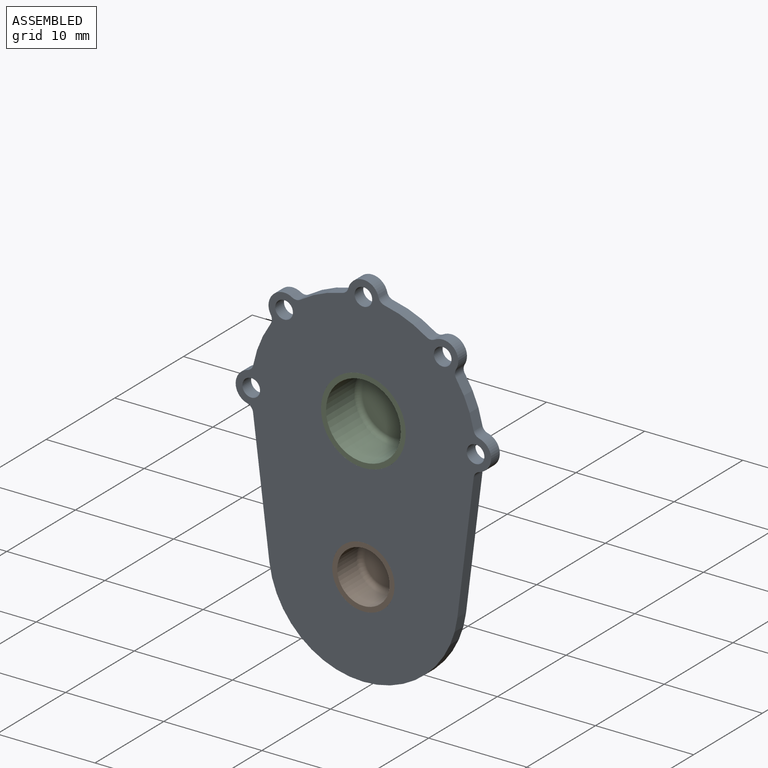
[diagram: assembled view]
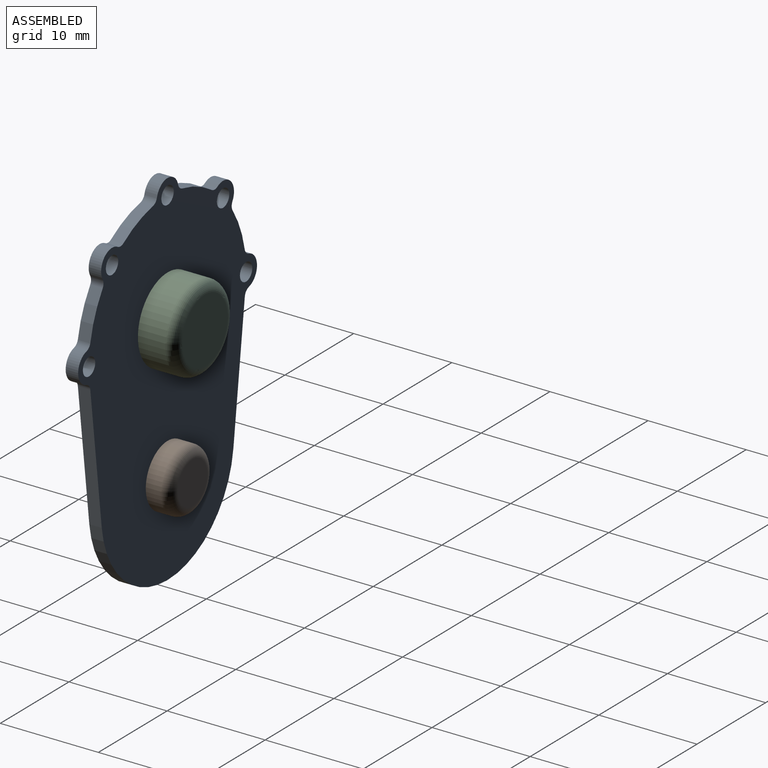
[diagram: assembled view, second angle]
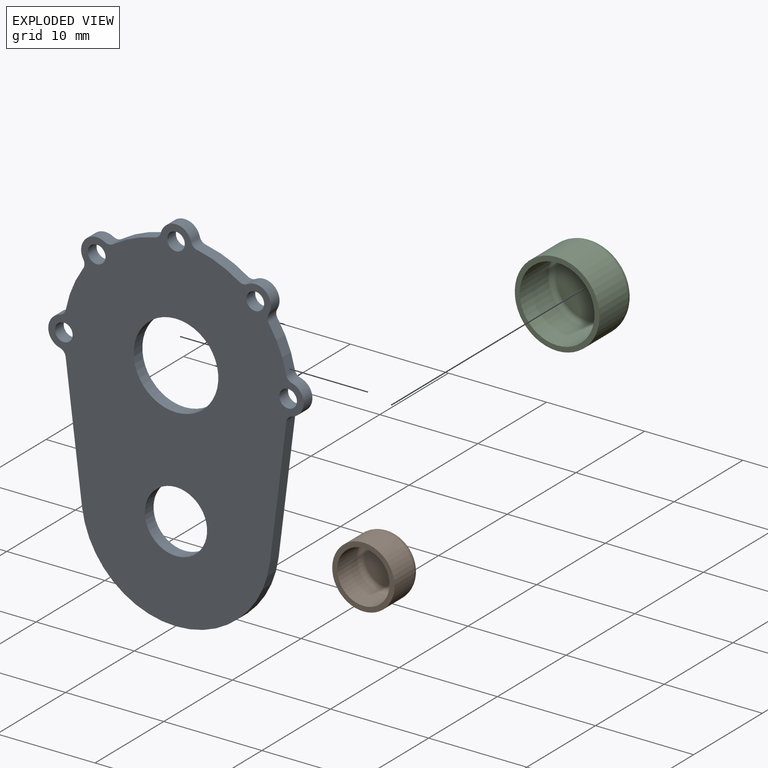
[diagram: exploded view]
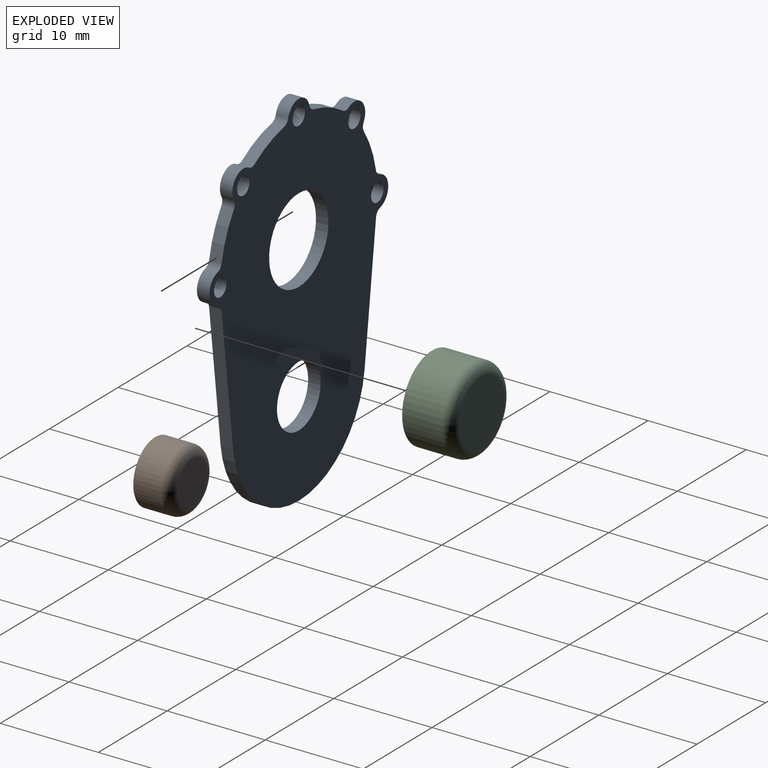
[diagram: exploded view, second angle]
ASSEMBLY  parts=3 mates=2
PART A: 31 faces, bbox 26x1.3x37 mm
  f0: plane 13.36x1.67mm, normal (-0.99,0,-0.12), area 17.1mm2, adj f1,f23,f24,f25
  f1: cylinder r=0.79mm len=1.27mm, axis (0,-1,0), area 1.2mm2, adj f0,f2,f24,f25
  f2: cylinder r=1.59mm len=3.08mm, axis (0,-1,0), area 5.3mm2, adj f1,f3,f24,f25
  f3: cylinder r=0.79mm len=1.27mm, axis (0,-1,0), area 1.1mm2, adj f2,f4,f24,f25
  f4: cylinder r=11.43mm len=4.25mm, axis (0,-1,0), area 5.9mm2, adj f3,f5,f24,f25
  f5: cylinder r=0.79mm len=1.27mm, axis (0,-1,0), area 1.1mm2, adj f4,f6,f24,f25
  f6: cylinder r=1.59mm len=2.41mm, axis (0,-1,0), area 5.4mm2, adj f5,f7,f24,f25
  f7: cylinder r=0.79mm len=1.27mm, axis (0,-1,0), area 1.1mm2, adj f6,f8,f24,f25
  f8: cylinder r=11.43mm len=4.25mm, axis (0,-1,0), area 5.9mm2, adj f7,f9,f24,f25
  f9: cylinder r=0.79mm len=1.27mm, axis (0,-1,0), area 1.1mm2, adj f8,f10,f24,f25
  f10: cylinder r=1.59mm len=3.08mm, axis (0,-1,0), area 5.4mm2, adj f9,f11,f24,f25
  f11: cylinder r=0.79mm len=1.27mm, axis (0,-1,0), area 1.1mm2, adj f10,f12,f24,f25
  f12: cylinder r=11.43mm len=4.25mm, axis (0,-1,0), area 5.9mm2, adj f11,f13,f24,f25
  f13: cylinder r=0.79mm len=1.27mm, axis (0,-1,0), area 1.1mm2, adj f12,f14,f24,f25
  f14: cylinder r=1.59mm len=2.41mm, axis (0,-1,0), area 5.4mm2, adj f13,f15,f24,f25
  f15: cylinder r=0.79mm len=1.27mm, axis (0,-1,0), area 1.1mm2, adj f14,f16,f24,f25
  f16: cylinder r=11.43mm len=4.25mm, axis (0,-1,0), area 5.9mm2, adj f15,f17,f24,f25
  f17: cylinder r=0.79mm len=1.27mm, axis (0,-1,0), area 1.1mm2, adj f16,f18,f24,f25
  f18: cylinder r=1.59mm len=3.08mm, axis (0,-1,0), area 5.3mm2, adj f17,f19,f24,f25
  f19: cylinder r=0.79mm len=1.27mm, axis (0,-1,0), area 1.2mm2, adj f18,f20,f24,f25
  f20: plane 13.36x1.67mm, normal (0.99,0,-0.12), area 17.1mm2, adj f19,f23,f24,f25
  f21: cylinder r=3.17mm len=6.35mm, axis (0,-1,0), area 25.3mm2, adj f24,f25
  f22: cylinder r=4.32mm len=8.64mm, axis (0,-1,0), area 34.5mm2, adj f24,f25
  f23: cylinder r=9.65mm len=19.16mm, axis (0,-1,0), area 35.5mm2, adj f0,f20,f24,f25
  f24: plane 37.04x26.04mm, normal (0,1,0), area 574.8mm2, adj f0,f1,f2,f3,f4,f5,f6,f7
  f25: plane 37.04x26.04mm, normal (0,-1,0), area 574.8mm2, adj f0,f1,f2,f3,f4,f5,f6,f7
  f26: cylinder r=0.9mm len=1.8mm, axis (0,-1,0), area 7.2mm2, adj f24,f25
  f27: cylinder r=0.9mm len=1.8mm, axis (0,-1,0), area 7.2mm2, adj f24,f25
  f28: cylinder r=0.9mm len=1.8mm, axis (0,-1,0), area 7.2mm2, adj f24,f25
  f29: cylinder r=0.9mm len=1.8mm, axis (0,-1,0), area 7.2mm2, adj f24,f25
  f30: cylinder r=0.9mm len=1.8mm, axis (0,-1,0), area 7.2mm2, adj f24,f25
PART B: 7 faces, bbox 6.9x3.8x6.9 mm
  f0: cylinder r=3.17mm len=6.35mm, axis (0,-1,0), area 55.7mm2, adj f1,f6
  f1: plane 6.35x6.35mm, normal (0,-1,0), area 9.3mm2, adj f0,f2
  f2: cylinder r=2.67mm len=5.33mm, axis (0,-1,0), area 46.8mm2, adj f1,f3
  f3: torus R=2.16mm, axis (0,-1,0), area 12.4mm2, adj f2,f4
  f4: plane 4.32x4.32mm, normal (0,-1,0), area 14.6mm2, adj f3
  f5: plane 4.32x4.32mm, normal (0,1,0), area 14.6mm2, adj f6
  f6: torus R=2.16mm, axis (0,-1,0), area 28.1mm2, adj f0,f5
PART C: 7 faces, bbox 9.3x5.1x9.3 mm
  f0: plane 6.6x6.6mm, normal (0,-1,0), area 34.3mm2, adj f6
  f1: plane 6.6x6.6mm, normal (0,1,0), area 34.3mm2, adj f2
  f2: torus R=3.3mm, axis (0,-1,0), area 39.6mm2, adj f1,f3
  f3: cylinder r=4.32mm len=8.64mm, axis (0,-1,0), area 110.3mm2, adj f2,f4
  f4: plane 8.64x8.64mm, normal (0,-1,0), area 13mm2, adj f3,f5
  f5: cylinder r=3.81mm len=7.62mm, axis (0,-1,0), area 97.3mm2, adj f4,f6
  f6: torus R=3.3mm, axis (0,-1,0), area 18.2mm2, adj f0,f5
PLACE A at identity fixed
PLACE B at identity
PLACE C at identity
MATE fastened B.f0 <-> A.f21  axis (0,-1,0) through (0,44.78,-0.08)mm
MATE fastened C.f2 <-> A.f22  axis (0,-1,0) through (0,44.78,14.29)mm
